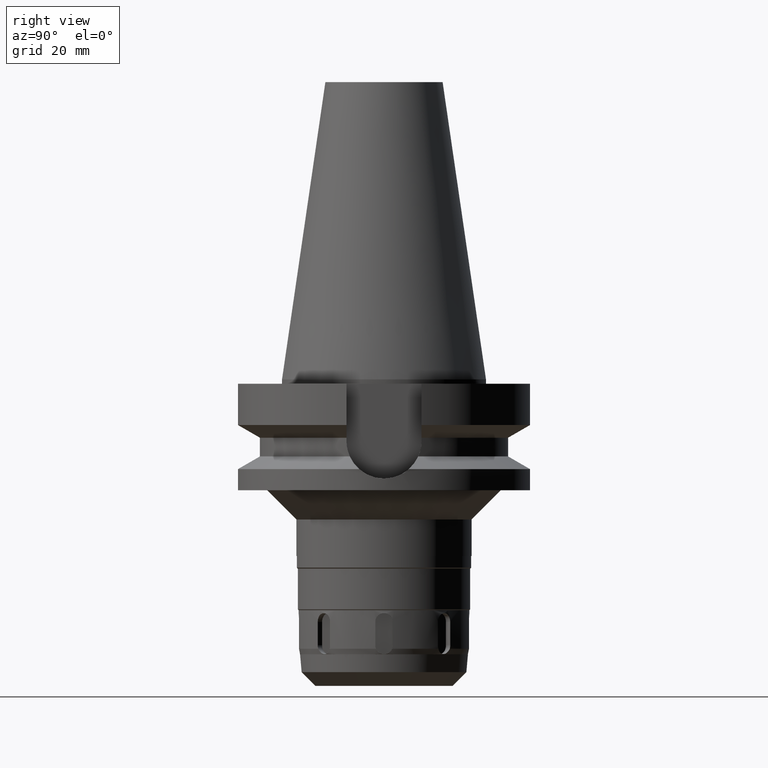
[diagram: clean part render]
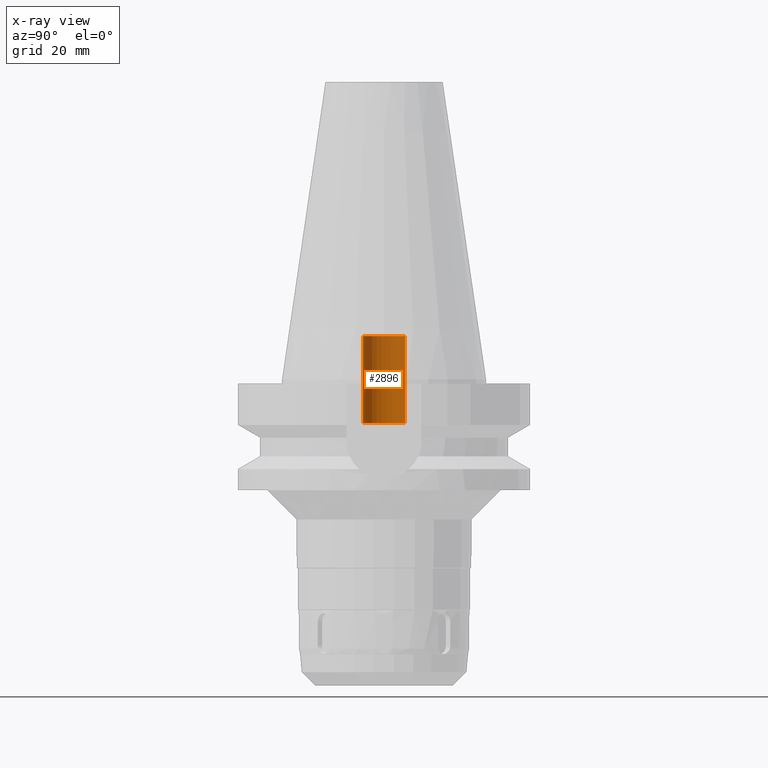
[diagram: x-ray — body ghosted, one internal face saturated and labeled with its STEP entity id]
A machine part, right view, then the same camera in x-ray: the body is ghosted and one INTERNAL B-rep face — a face not visible from any outside direction — is saturated and labeled: STEP entity #2896.
In plain terms, the highlighted cylindrical surface (edge-blend (fillet) strip) has radius 7.25 mm, axis along (0, 0, -1).
Its self-contained STEP definition (entity closure, byte-faithful):
#102=CARTESIAN_POINT('',(0.E0,2.597965719711E-14,1.48E1));
#103=DIRECTION('',(0.E0,0.E0,1.E0));
#104=DIRECTION('',(0.E0,1.E0,0.E0));
#105=AXIS2_PLACEMENT_3D('',#102,#103,#104);
#110=DIRECTION('',(0.E0,0.E0,1.E0));
#111=VECTOR('',#110,2.98E1);
#112=CARTESIAN_POINT('',(0.E0,7.25E0,-1.5E1));
#113=LINE('',#112,#111);
#117=DIRECTION('',(0.E0,0.E0,1.E0));
#118=VECTOR('',#117,2.98E1);
#119=CARTESIAN_POINT('',(0.E0,-7.25E0,-1.5E1));
#120=LINE('',#119,#118);
#140=CARTESIAN_POINT('',(0.E0,2.597965719711E-14,-1.5E1));
#141=DIRECTION('',(0.E0,0.E0,-1.E0));
#142=DIRECTION('',(0.E0,-1.E0,0.E0));
#143=AXIS2_PLACEMENT_3D('',#140,#141,#142);
#2444=CARTESIAN_POINT('',(0.E0,-7.25E0,1.48E1));
#2445=CARTESIAN_POINT('',(0.E0,7.25E0,1.48E1));
#2446=VERTEX_POINT('',#2444);
#2447=VERTEX_POINT('',#2445);
#2448=CARTESIAN_POINT('',(0.E0,7.25E0,-1.5E1));
#2449=VERTEX_POINT('',#2448);
#2450=CARTESIAN_POINT('',(0.E0,-7.25E0,-1.5E1));
#2451=VERTEX_POINT('',#2450);
#2884=CARTESIAN_POINT('',(0.E0,2.597965719711E-14,1.1214E2));
#2885=DIRECTION('',(0.E0,0.E0,-1.E0));
#2886=DIRECTION('',(0.E0,-1.E0,0.E0));
#2887=AXIS2_PLACEMENT_3D('',#2884,#2885,#2886);
#2888=CYLINDRICAL_SURFACE('',#2887,7.25E0);
#2889=ORIENTED_EDGE('',*,*,#2874,.F.);
#2891=ORIENTED_EDGE('',*,*,#2890,.F.);
#2892=ORIENTED_EDGE('',*,*,#2877,.T.);
#2893=ORIENTED_EDGE('',*,*,#2864,.F.);
#2894=EDGE_LOOP('',(#2889,#2891,#2892,#2893));
#2895=FACE_OUTER_BOUND('',#2894,.F.);
#106=CIRCLE('',#105,7.25E0);
#144=CIRCLE('',#143,7.25E0);
#2864=EDGE_CURVE('',#2447,#2446,#106,.T.);
#2874=EDGE_CURVE('',#2449,#2447,#113,.T.);
#2877=EDGE_CURVE('',#2451,#2446,#120,.T.);
#2890=EDGE_CURVE('',#2451,#2449,#144,.T.);
#2896=ADVANCED_FACE('',(#2895),#2888,.F.);